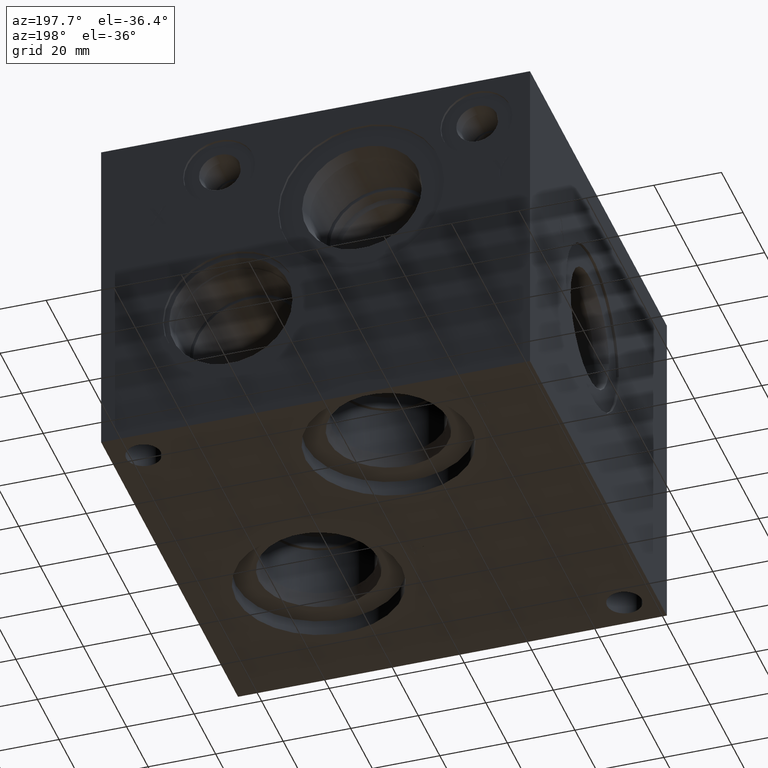
[diagram: clean part render]
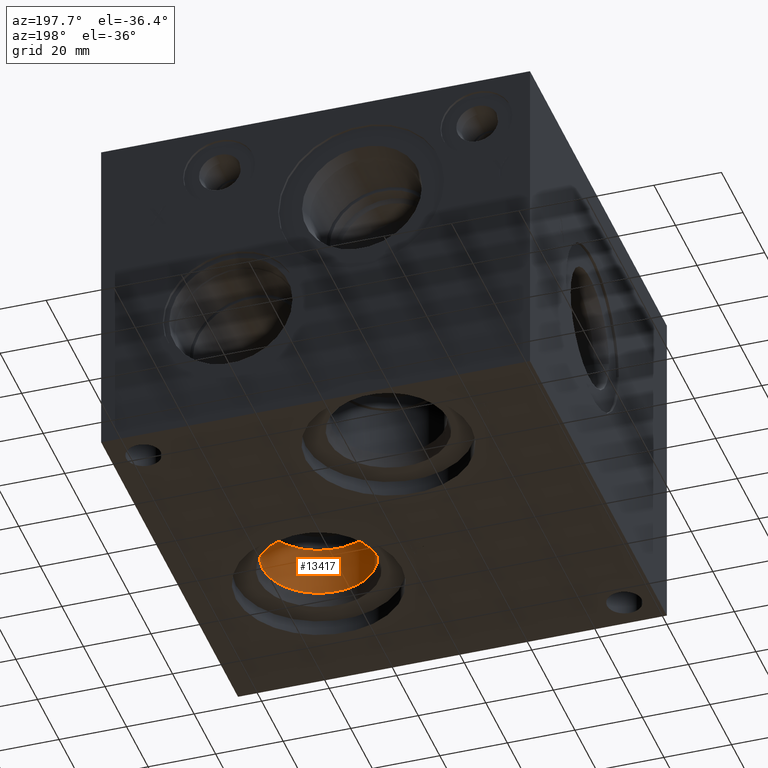
[diagram: same view with one face highlighted and labeled with its STEP entity id]
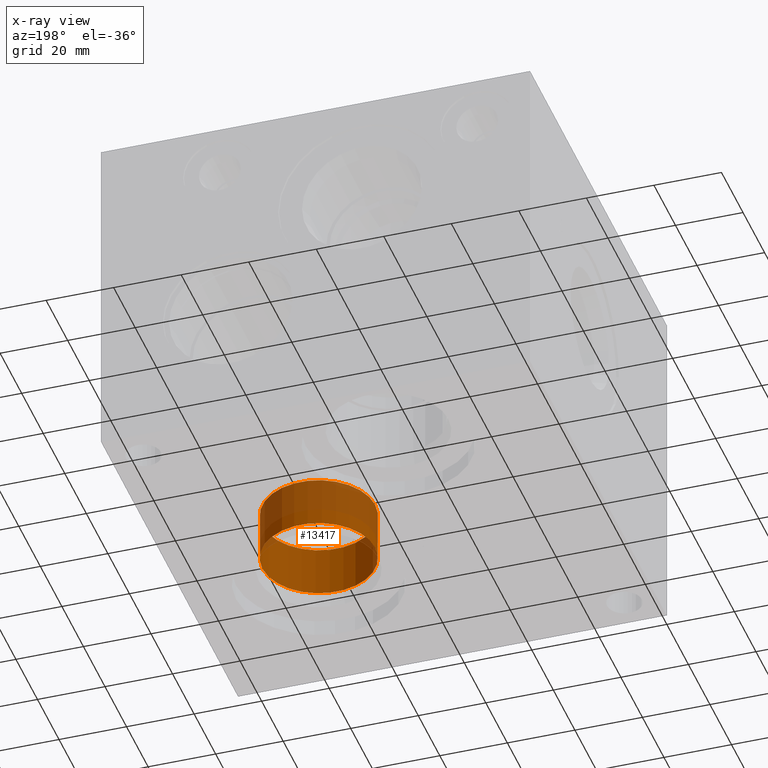
[diagram: x-ray of the same camera — body ghosted, the highlighted face saturated]
A machine part, auxiliary view. The second image highlights one B-rep face of the part: STEP entity #13417.
The next image is the same camera in x-ray: the body ghosted, the highlighted face saturated — about 37% of this face is hidden behind the body in this view.
In plain terms, the highlighted cylindrical surface (bore or boss wall) has radius 16.6751 mm, axis along (0, 0, -1).
Its self-contained STEP definition (entity closure, byte-faithful):
#21=CYLINDRICAL_SURFACE('',#14017,16.6751);
#212=CIRCLE('',#14015,16.6751);
#213=CIRCLE('',#14016,16.6751);
#214=CIRCLE('',#14018,16.6751);
#1496=FACE_OUTER_BOUND('',#2252,.T.);
#2252=EDGE_LOOP('',(#11319,#11320,#11321,#11322,#11323));
#3576=LINE('',#22570,#4817);
#4817=VECTOR('',#16383,16.6751);
#6283=VERTEX_POINT('',#22563);
#6284=VERTEX_POINT('',#22564);
#6285=VERTEX_POINT('',#22568);
#8045=EDGE_CURVE('',#6283,#6284,#212,.T.);
#8046=EDGE_CURVE('',#6284,#6283,#213,.T.);
#8047=EDGE_CURVE('',#6285,#6285,#214,.T.);
#8048=EDGE_CURVE('',#6285,#6284,#3576,.T.);
#11319=ORIENTED_EDGE('',*,*,#8047,.F.);
#11320=ORIENTED_EDGE('',*,*,#8048,.T.);
#11321=ORIENTED_EDGE('',*,*,#8045,.F.);
#11322=ORIENTED_EDGE('',*,*,#8046,.F.);
#11323=ORIENTED_EDGE('',*,*,#8048,.F.);
#13417=ADVANCED_FACE('',(#1496),#21,.F.);
#14015=AXIS2_PLACEMENT_3D('',#22565,#16375,#16376);
#14016=AXIS2_PLACEMENT_3D('',#22566,#16377,#16378);
#14017=AXIS2_PLACEMENT_3D('',#22567,#16379,#16380);
#14018=AXIS2_PLACEMENT_3D('',#22569,#16381,#16382);
#16375=DIRECTION('center_axis',(0.,0.,-1.));
#16376=DIRECTION('ref_axis',(1.,0.,0.));
#16377=DIRECTION('center_axis',(0.,0.,-1.));
#16378=DIRECTION('ref_axis',(1.,0.,0.));
#16379=DIRECTION('center_axis',(0.,0.,-1.));
#16380=DIRECTION('ref_axis',(1.,0.,0.));
#16381=DIRECTION('center_axis',(0.,0.,1.));
#16382=DIRECTION('ref_axis',(1.,0.,0.));
#16383=DIRECTION('',(0.,0.,1.));
#22563=CARTESIAN_POINT('',(105.5751,44.45,23.8252));
#22564=CARTESIAN_POINT('',(72.2249,44.45,23.8252));
#22565=CARTESIAN_POINT('Origin',(88.9,44.45,23.8252));
#22566=CARTESIAN_POINT('Origin',(88.9,44.45,23.8252));
#22567=CARTESIAN_POINT('Origin',(88.9,44.45,11.9126));
#22568=CARTESIAN_POINT('',(72.2249,44.45,8.8114788467706));
#22569=CARTESIAN_POINT('Origin',(88.9,44.45,8.8114788467706));
#22570=CARTESIAN_POINT('',(72.2249,44.45,11.9126));